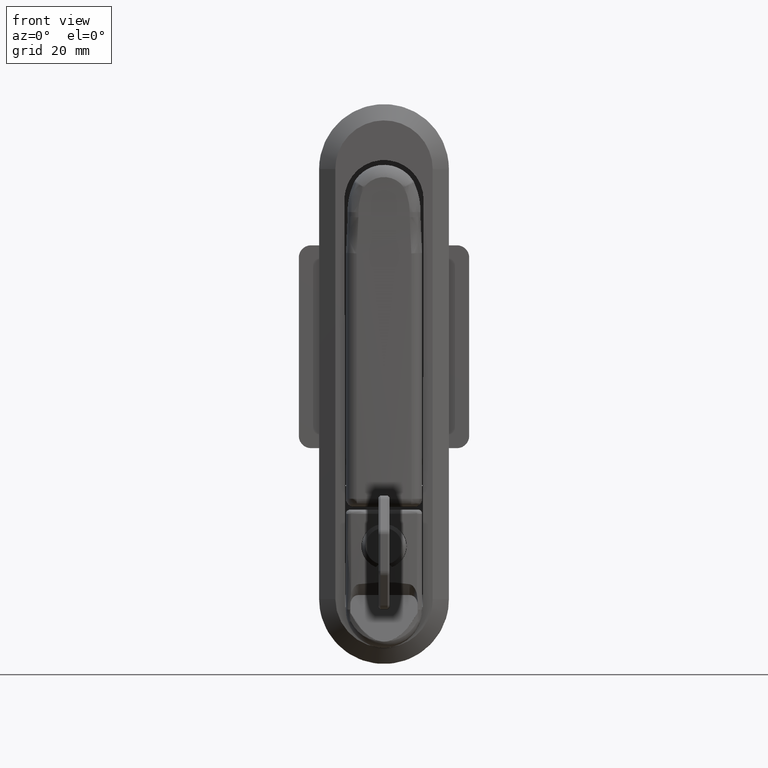
[diagram: clean part render]
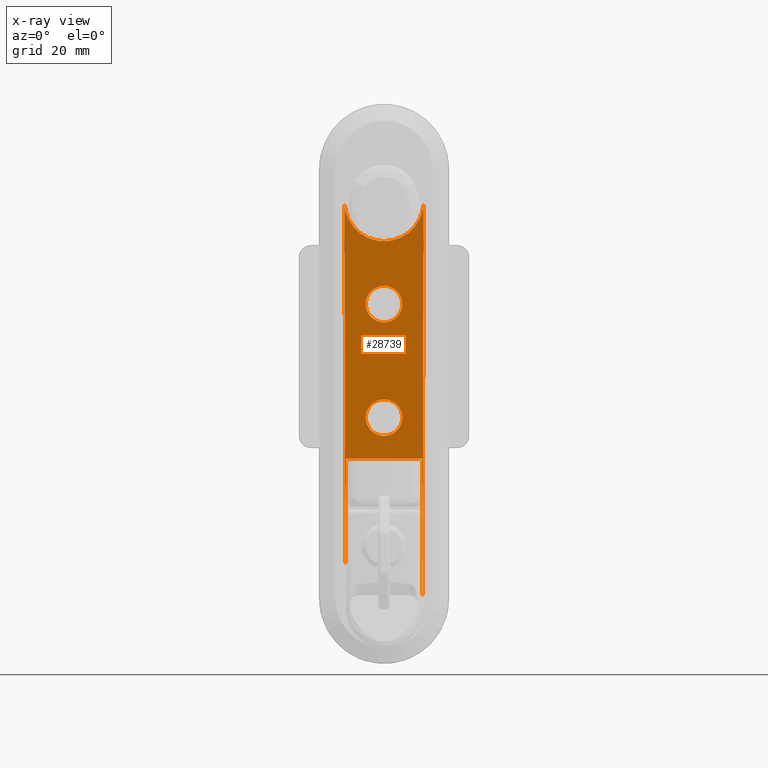
[diagram: x-ray — body ghosted, one internal face saturated and labeled with its STEP entity id]
A machine part, front view, then the same camera in x-ray: the body is ghosted and one INTERNAL B-rep face — a face not visible from any outside direction — is saturated and labeled: STEP entity #28739.
In plain terms, the highlighted face is a freeform B-spline surface patch.
Its self-contained STEP definition (entity closure, byte-faithful):
#24047=CARTESIAN_POINT('',(1.499999999998946,-3.249081412930126,-28.613433790393149));
#24048=VERTEX_POINT('',#24047);
#24054=CARTESIAN_POINT('',(1.499999999998946,7.670451E-010,-20.999999999999350));
#24055=VERTEX_POINT('',#24054);
#24056=CARTESIAN_POINT('',(1.499999999998946,-3.249081412930125,-28.613433790393156));
#24057=CARTESIAN_POINT('',(1.499999999998946,-4.499999999232955,-27.308014564410524));
#24058=CARTESIAN_POINT('',(1.499999999998946,-4.499999999232954,-25.499999999999350));
#24059=CARTESIAN_POINT('',(1.499999999998946,-4.499999999232954,-20.999999999999353));
#24060=CARTESIAN_POINT('',(1.499999999998946,7.670451E-010,-20.999999999999350));
#24068=(BOUNDED_CURVE()B_SPLINE_CURVE(2,(#24056,#24057,#24058,#24059,#24060),.UNSPECIFIED.,.F.,.U.)B_SPLINE_CURVE_WITH_KNOTS((3,2,3),(0.128216545627414,0.250000000000000,0.500000000000000),.UNSPECIFIED.)CURVE()GEOMETRIC_REPRESENTATION_ITEM()RATIONAL_B_SPLINE_CURVE((0.853650360890736,0.857321808202368,1.0,0.707106781186547,1.0))REPRESENTATION_ITEM(''));
#24069=EDGE_CURVE('',#24048,#24055,#24068,.T.);
#24071=CARTESIAN_POINT('',(1.499999999998946,3.421826836714451,-22.577483771679969));
#24072=VERTEX_POINT('',#24071);
#24073=CARTESIAN_POINT('',(1.499999999998946,7.670451E-010,-20.999999999999350));
#24074=CARTESIAN_POINT('',(1.499999999998945,2.074528398415034,-20.999999999999346));
#24075=CARTESIAN_POINT('',(1.499999999998945,3.421826836714451,-22.577483771679972));
#24083=(BOUNDED_CURVE()B_SPLINE_CURVE(2,(#24073,#24074,#24075),.UNSPECIFIED.,.F.,.U.)B_SPLINE_CURVE_WITH_KNOTS((3,3),(0.500000000000000,0.636856837693722),.UNSPECIFIED.)CURVE()GEOMETRIC_REPRESENTATION_ITEM()RATIONAL_B_SPLINE_CURVE((1.0,0.839662241165022,0.854871031426474))REPRESENTATION_ITEM(''));
#24084=EDGE_CURVE('',#24055,#24072,#24083,.T.);
#24188=CARTESIAN_POINT('',(1.499999999998946,7.670451E-010,-29.999999999999350));
#24189=VERTEX_POINT('',#24188);
#24190=CARTESIAN_POINT('',(1.499999999998946,3.421826836714452,-22.577483771679962));
#24191=CARTESIAN_POINT('',(1.499999999998946,4.500000000767044,-23.839862336819014));
#24192=CARTESIAN_POINT('',(1.499999999998946,4.500000000767045,-25.499999999999350));
#24193=CARTESIAN_POINT('',(1.499999999998946,4.500000000767044,-29.999999999999361));
#24194=CARTESIAN_POINT('',(1.499999999998946,7.670451E-010,-29.999999999999350));
#24202=(BOUNDED_CURVE()B_SPLINE_CURVE(2,(#24190,#24191,#24192,#24193,#24194),.UNSPECIFIED.,.F.,.U.)B_SPLINE_CURVE_WITH_KNOTS((3,2,3),(0.636856837693721,0.750000000000000,1.0),.UNSPECIFIED.)CURVE()GEOMETRIC_REPRESENTATION_ITEM()RATIONAL_B_SPLINE_CURVE((0.854871031426474,0.867444540021524,1.0,0.707106781186547,1.0))REPRESENTATION_ITEM(''));
#24203=EDGE_CURVE('',#24072,#24189,#24202,.T.);
#24205=CARTESIAN_POINT('',(1.499999999998946,7.670451E-010,-29.999999999999350));
#24206=CARTESIAN_POINT('',(1.499999999998946,-1.920403691465151,-29.999999999999353));
#24207=CARTESIAN_POINT('',(1.499999999998946,-3.249081412930125,-28.613433790393156));
#24215=(BOUNDED_CURVE()B_SPLINE_CURVE(2,(#24205,#24206,#24207),.UNSPECIFIED.,.F.,.U.)B_SPLINE_CURVE_WITH_KNOTS((3,3),(0.0,0.128216545627414),.UNSPECIFIED.)CURVE()GEOMETRIC_REPRESENTATION_ITEM()RATIONAL_B_SPLINE_CURVE((1.0,0.849784972984180,0.853650360890736))REPRESENTATION_ITEM(''));
#24216=EDGE_CURVE('',#24189,#24048,#24215,.T.);
#24244=CARTESIAN_POINT('',(1.499999999998946,2.784154330387310,-57.035319599221438));
#24245=VERTEX_POINT('',#24244);
#24246=CARTESIAN_POINT('',(1.499999999998946,7.687504E-010,-57.999999999967898));
#24247=VERTEX_POINT('',#24246);
#24248=CARTESIAN_POINT('',(1.499999999998946,2.784154330387310,-57.035319599221438));
#24249=CARTESIAN_POINT('',(1.499999999998947,1.559203008010513,-57.999999999967905));
#24250=CARTESIAN_POINT('',(1.499999999998946,7.687504E-010,-57.999999999967898));
#24258=(BOUNDED_CURVE()B_SPLINE_CURVE(2,(#24248,#24249,#24250),.UNSPECIFIED.,.F.,.U.)B_SPLINE_CURVE_WITH_KNOTS((3,3),(0.892872459110088,1.0),.UNSPECIFIED.)CURVE()GEOMETRIC_REPRESENTATION_ITEM()RATIONAL_B_SPLINE_CURVE((0.856547225993960,0.874492278900735,1.0))REPRESENTATION_ITEM(''));
#24259=EDGE_CURVE('',#24245,#24247,#24258,.T.);
#24261=CARTESIAN_POINT('',(1.499999999998946,7.687504E-010,-48.999999999967912));
#24262=VERTEX_POINT('',#24261);
#24263=CARTESIAN_POINT('',(1.499999999998946,7.687504E-010,-57.999999999967898));
#24264=CARTESIAN_POINT('',(1.499999999998946,-4.499999999231249,-57.999999999967898));
#24265=CARTESIAN_POINT('',(1.499999999998946,-4.499999999231249,-53.499999999967898));
#24266=CARTESIAN_POINT('',(1.499999999998946,-4.499999999231249,-48.999999999967891));
#24267=CARTESIAN_POINT('',(1.499999999998946,7.687504E-010,-48.999999999967912));
#24275=(BOUNDED_CURVE()B_SPLINE_CURVE(2,(#24263,#24264,#24265,#24266,#24267),.UNSPECIFIED.,.F.,.U.)B_SPLINE_CURVE_WITH_KNOTS((3,2,3),(0.0,0.250000000000000,0.500000000000000),.UNSPECIFIED.)CURVE()GEOMETRIC_REPRESENTATION_ITEM()RATIONAL_B_SPLINE_CURVE((1.0,0.707106781186547,1.0,0.707106781186547,1.0))REPRESENTATION_ITEM(''));
#24276=EDGE_CURVE('',#24247,#24262,#24275,.T.);
#24278=CARTESIAN_POINT('',(1.499999999998946,3.370304144134533,-50.518213625798033));
#24279=VERTEX_POINT('',#24278);
#24280=CARTESIAN_POINT('',(1.499999999998946,7.687504E-010,-48.999999999967912));
#24281=CARTESIAN_POINT('',(1.499999999998946,2.027105278395005,-48.999999999967898));
#24282=CARTESIAN_POINT('',(1.499999999998946,3.370304144134533,-50.518213625798026));
#24290=(BOUNDED_CURVE()B_SPLINE_CURVE(2,(#24280,#24281,#24282),.UNSPECIFIED.,.F.,.U.)B_SPLINE_CURVE_WITH_KNOTS((3,3),(0.500000000000000,0.634220284143034),.UNSPECIFIED.)CURVE()GEOMETRIC_REPRESENTATION_ITEM()RATIONAL_B_SPLINE_CURVE((1.0,0.842751155789163,0.854350187987463))REPRESENTATION_ITEM(''));
#24291=EDGE_CURVE('',#24262,#24279,#24290,.T.);
#24388=CARTESIAN_POINT('',(1.499999999998946,3.370304144134533,-50.518213625798026));
#24389=CARTESIAN_POINT('',(1.499999999998946,4.500000000768750,-51.795105444516693));
#24390=CARTESIAN_POINT('',(1.499999999998946,4.500000000768750,-53.499999999967898));
#24391=CARTESIAN_POINT('',(1.499999999998945,4.500000000768751,-55.684047382370473));
#24392=CARTESIAN_POINT('',(1.499999999998946,2.784154330387310,-57.035319599221438));
#24400=(BOUNDED_CURVE()B_SPLINE_CURVE(2,(#24388,#24389,#24390,#24391,#24392),.UNSPECIFIED.,.F.,.U.)B_SPLINE_CURVE_WITH_KNOTS((3,2,3),(0.634220284143034,0.750000000000000,0.892872459110088),.UNSPECIFIED.)CURVE()GEOMETRIC_REPRESENTATION_ITEM()RATIONAL_B_SPLINE_CURVE((0.854350187987463,0.864355625397385,1.0,0.832614502285811,0.856547225993960))REPRESENTATION_ITEM(''));
#24401=EDGE_CURVE('',#24279,#24245,#24400,.T.);
#27611=CARTESIAN_POINT('',(1.499999999998920,9.500000000264210,-63.589770558811601));
#27612=VERTEX_POINT('',#27611);
#27613=CARTESIAN_POINT('',(1.499999999998946,9.500000000264210,-97.199999999999989));
#27614=VERTEX_POINT('',#27613);
#27615=CARTESIAN_POINT('',(1.499999999998920,9.500000000264210,-63.589770558811601));
#27616=CARTESIAN_POINT('',(1.499999999998946,9.500000000264210,-97.199999999999989));
#27617=QUASI_UNIFORM_CURVE('',1,(#27615,#27616),.UNSPECIFIED.,.F.,.U.);
#27618=EDGE_CURVE('',#27612,#27614,#27617,.T.);
#27663=CARTESIAN_POINT('',(1.499999999998920,-9.499999999735792,-63.589770558811601));
#27664=VERTEX_POINT('',#27663);
#27691=CARTESIAN_POINT('',(1.499999999998946,-9.499999999735792,-97.199999999999989));
#27692=VERTEX_POINT('',#27691);
#27698=CARTESIAN_POINT('',(1.499999999998920,-9.499999999735792,-63.589770558811601));
#27699=CARTESIAN_POINT('',(1.499999999998946,-9.499999999735792,-97.199999999999989));
#27700=QUASI_UNIFORM_CURVE('',1,(#27698,#27699),.UNSPECIFIED.,.F.,.U.);
#27701=EDGE_CURVE('',#27664,#27692,#27700,.T.);
#27750=CARTESIAN_POINT('',(1.499999999998920,9.500000000264210,-63.589770558811601));
#27751=CARTESIAN_POINT('',(1.499999999998920,-9.499999999735792,-63.589770558811601));
#27752=QUASI_UNIFORM_CURVE('',1,(#27750,#27751),.UNSPECIFIED.,.F.,.U.);
#27753=EDGE_CURVE('',#27612,#27664,#27752,.T.);
#27787=CARTESIAN_POINT('',(1.499999999998946,9.554024350053039,-97.200000000192901));
#27788=VERTEX_POINT('',#27787);
#27795=CARTESIAN_POINT('',(1.499999999998946,-9.554024348515661,-97.200000000192901));
#27796=VERTEX_POINT('',#27795);
#27802=CARTESIAN_POINT('',(1.499999999998946,-9.499999999735792,-97.199999999999989));
#27803=CARTESIAN_POINT('',(1.499999999998946,-9.554024348515661,-97.200000000192901));
#27804=QUASI_UNIFORM_CURVE('',1,(#27802,#27803),.UNSPECIFIED.,.F.,.U.);
#27805=EDGE_CURVE('',#27692,#27796,#27804,.T.);
#27814=CARTESIAN_POINT('',(1.499999999998946,9.554024350053039,-97.200000000192901));
#27815=CARTESIAN_POINT('',(1.499999999998946,9.500000000264210,-97.199999999999989));
#27816=QUASI_UNIFORM_CURVE('',1,(#27814,#27815),.UNSPECIFIED.,.F.,.U.);
#27817=EDGE_CURVE('',#27788,#27614,#27816,.T.);
#27827=CARTESIAN_POINT('',(1.499999999998946,-9.748691613039460,-0.409724196295745));
#27828=VERTEX_POINT('',#27827);
#27829=CARTESIAN_POINT('',(1.499999999998946,-9.554024348515661,-97.200000000192901));
#27830=CARTESIAN_POINT('',(1.499999999998946,-9.748691613039460,-0.409724196295745));
#27831=QUASI_UNIFORM_CURVE('',1,(#27829,#27830),.UNSPECIFIED.,.F.,.U.);
#27832=EDGE_CURVE('',#27796,#27828,#27831,.T.);
#27865=CARTESIAN_POINT('',(1.499999999998946,9.748691614573449,-0.409724196329697));
#27866=VERTEX_POINT('',#27865);
#27867=CARTESIAN_POINT('',(1.499999999998946,9.748691614573449,-0.409724196329697));
#27868=CARTESIAN_POINT('',(1.499999999998946,9.554024350053039,-97.200000000192901));
#27869=QUASI_UNIFORM_CURVE('',1,(#27867,#27868),.UNSPECIFIED.,.F.,.U.);
#27870=EDGE_CURVE('',#27866,#27788,#27869,.T.);
#27988=CARTESIAN_POINT('',(1.499999999998946,-9.748691613039462,-0.409724196295744));
#27989=CARTESIAN_POINT('',(1.499999999998946,-9.591562927875001,-9.999999999945898));
#27990=CARTESIAN_POINT('',(1.499999999998946,7.502970E-010,-9.999999999962597));
#27991=CARTESIAN_POINT('',(1.499999999998946,9.591562929375584,-9.999999999979298));
#27992=CARTESIAN_POINT('',(1.499999999998946,9.748691614573447,-0.409724196329699));
#28000=(BOUNDED_CURVE()B_SPLINE_CURVE(2,(#27988,#27989,#27990,#27991,#27992),.UNSPECIFIED.,.F.,.U.)B_SPLINE_CURVE_WITH_KNOTS((3,2,3),(0.0,0.500000000000000,1.0),.UNSPECIFIED.)CURVE()GEOMETRIC_REPRESENTATION_ITEM()RATIONAL_B_SPLINE_CURVE((1.0,0.712875153465325,1.0,0.712875153465325,1.0))REPRESENTATION_ITEM(''));
#28001=EDGE_CURVE('',#27828,#27866,#28000,.T.);
#28712=CARTESIAN_POINT('',(1.499999999998920,10.722585869003000,4.424949546707742));
#28713=CARTESIAN_POINT('',(1.499999999998920,-10.722586390429580,4.424949546707742));
#28714=CARTESIAN_POINT('',(1.499999999998920,10.722585869003000,-102.034669416333900));
#28715=CARTESIAN_POINT('',(1.499999999998920,-10.722586390429580,-102.034669416333900));
#28716=B_SPLINE_SURFACE_WITH_KNOTS('',1,1,((#28712,#28714),(#28713,#28715)),.UNSPECIFIED.,.F.,.F.,.U.,(2,2),(2,2),(0.0,21.445172259432589),(0.0,106.459618963041610),.UNSPECIFIED.);
#28717=ORIENTED_EDGE('',*,*,#27753,.T.);
#28718=ORIENTED_EDGE('',*,*,#27701,.T.);
#28719=ORIENTED_EDGE('',*,*,#27805,.T.);
#28720=ORIENTED_EDGE('',*,*,#27832,.T.);
#28721=ORIENTED_EDGE('',*,*,#28001,.T.);
#28722=ORIENTED_EDGE('',*,*,#27870,.T.);
#28723=ORIENTED_EDGE('',*,*,#27817,.T.);
#28724=ORIENTED_EDGE('',*,*,#27618,.F.);
#28725=EDGE_LOOP('',(#28717,#28718,#28719,#28720,#28721,#28722,#28723,#28724));
#28726=FACE_OUTER_BOUND('',#28725,.T.);
#28727=ORIENTED_EDGE('',*,*,#24276,.F.);
#28728=ORIENTED_EDGE('',*,*,#24259,.F.);
#28729=ORIENTED_EDGE('',*,*,#24401,.F.);
#28730=ORIENTED_EDGE('',*,*,#24291,.F.);
#28731=EDGE_LOOP('',(#28727,#28728,#28729,#28730));
#28732=FACE_BOUND('',#28731,.T.);
#28733=ORIENTED_EDGE('',*,*,#24084,.F.);
#28734=ORIENTED_EDGE('',*,*,#24069,.F.);
#28735=ORIENTED_EDGE('',*,*,#24216,.F.);
#28736=ORIENTED_EDGE('',*,*,#24203,.F.);
#28737=EDGE_LOOP('',(#28733,#28734,#28735,#28736));
#28738=FACE_BOUND('',#28737,.T.);
#28739=ADVANCED_FACE('',(#28726,#28732,#28738),#28716,.F.);